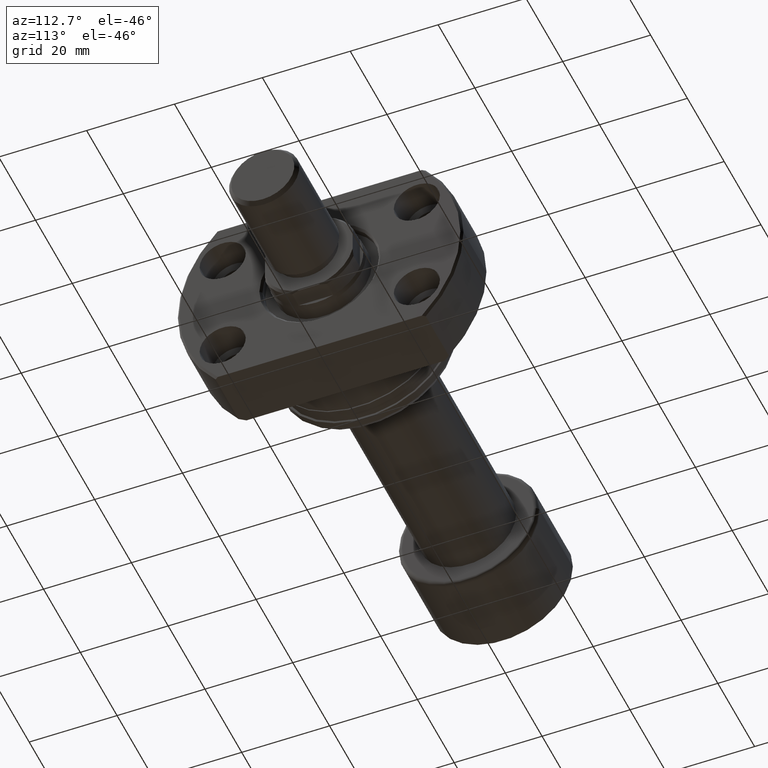
[diagram: clean part render]
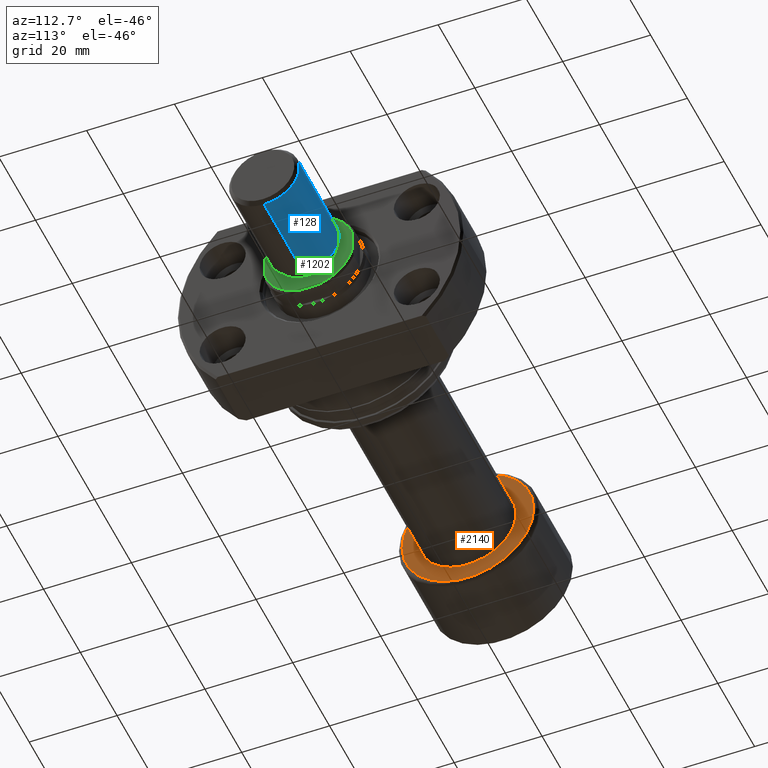
[diagram: same view with three faces highlighted in distinct colors, each labeled with its STEP entity id]
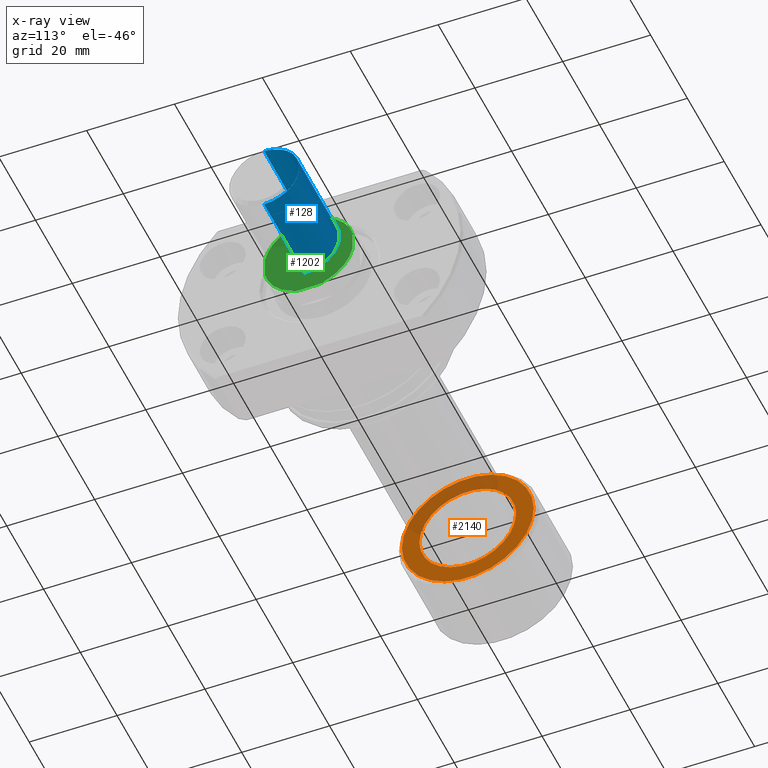
[diagram: x-ray of the same camera — body ghosted, the three highlighted faces saturated]
A machine part, auxiliary view with three faces highlighted in distinct colors.
The next image is the same camera in x-ray (body ghosted, the three faces saturated) — at least one of them is partly hidden behind the body in this view.
Their STEP definitions:

[orange] entity #2140 — the highlighted planar face has unit normal (-1, -0, 0).
#188 = PLANE ( 'NONE',  #3320 ) ;
#189 = CARTESIAN_POINT ( 'NONE',  ( 20.39999999999999503, -15.00000000000000000, 0.000000000000000000 ) ) ;
#316 = ORIENTED_EDGE ( 'NONE', *, *, #2756, .T. ) ;
#437 = VERTEX_POINT ( 'NONE', #3398 ) ;
#540 = ORIENTED_EDGE ( 'NONE', *, *, #903, .T. ) ;
#543 = DIRECTION ( 'NONE',  ( -1.000000000000000000, -1.069542322069065801E-17, -0.000000000000000000 ) ) ;
#614 = DIRECTION ( 'NONE',  ( -1.000000000000000000, -1.069542322069065801E-17, -0.000000000000000000 ) ) ;
#632 = CIRCLE ( 'NONE', #864, 11.00000000000000000 ) ;
#652 = CARTESIAN_POINT ( 'NONE',  ( 20.39999999999999503, 2.181866337020893623E-16, 0.000000000000000000 ) ) ;
#787 = VERTEX_POINT ( 'NONE', #1280 ) ;
#864 = AXIS2_PLACEMENT_3D ( 'NONE', #652, #1805, #3153 ) ;
#903 = EDGE_CURVE ( 'NONE', #2207, #787, #2716, .T. ) ;
#925 = EDGE_CURVE ( 'NONE', #437, #2548, #2537, .T. ) ;
#984 = FACE_BOUND ( 'NONE', #3444, .T. ) ;
#1021 = EDGE_CURVE ( 'NONE', #2548, #437, #1697, .T. ) ;
#1023 = DIRECTION ( 'NONE',  ( 1.069542322069065801E-17, -1.000000000000000000, 0.000000000000000000 ) ) ;
#1097 = DIRECTION ( 'NONE',  ( -1.000000000000000000, -1.069542322069065801E-17, -0.000000000000000000 ) ) ;
#1280 = CARTESIAN_POINT ( 'NONE',  ( 20.39999999999999503, 11.00000000000000000, 1.347111479062094321E-15 ) ) ;
#1284 = AXIS2_PLACEMENT_3D ( 'NONE', #3355, #1097, #3637 ) ;
#1348 = AXIS2_PLACEMENT_3D ( 'NONE', #3102, #543, #1676 ) ;
#1676 = DIRECTION ( 'NONE',  ( 0.000000000000000000, -1.000000000000000000, 0.000000000000000000 ) ) ;
#1697 = CIRCLE ( 'NONE', #1761, 15.00000000000000000 ) ;
#1761 = AXIS2_PLACEMENT_3D ( 'NONE', #3127, #614, #2043 ) ;
#1805 = DIRECTION ( 'NONE',  ( -1.000000000000000000, -1.069542322069065801E-17, -0.000000000000000000 ) ) ;
#1865 = CARTESIAN_POINT ( 'NONE',  ( 20.39999999999999503, -11.00000000000000000, 0.000000000000000000 ) ) ;
#2043 = DIRECTION ( 'NONE',  ( 0.000000000000000000, -1.000000000000000000, 0.000000000000000000 ) ) ;
#2075 = EDGE_LOOP ( 'NONE', ( #3397, #2461 ) ) ;
#2140 = ADVANCED_FACE ( 'NONE', ( #3243, #984 ), #188, .F. ) ;
#2207 = VERTEX_POINT ( 'NONE', #2726 ) ;
#2421 = DIRECTION ( 'NONE',  ( -1.000000000000000000, -1.069542322069065801E-17, 0.000000000000000000 ) ) ;
#2461 = ORIENTED_EDGE ( 'NONE', *, *, #925, .F. ) ;
#2537 = CIRCLE ( 'NONE', #1348, 15.00000000000000000 ) ;
#2548 = VERTEX_POINT ( 'NONE', #189 ) ;
#2716 = CIRCLE ( 'NONE', #1284, 11.00000000000000000 ) ;
#2726 = CARTESIAN_POINT ( 'NONE',  ( 20.39999999999999503, -11.00000000000000000, 0.000000000000000000 ) ) ;
#2756 = EDGE_CURVE ( 'NONE', #787, #2207, #632, .T. ) ;
#3102 = CARTESIAN_POINT ( 'NONE',  ( 20.39999999999999503, 2.181866337020893623E-16, 0.000000000000000000 ) ) ;
#3127 = CARTESIAN_POINT ( 'NONE',  ( 20.39999999999999503, 2.181866337020893623E-16, 0.000000000000000000 ) ) ;
#3153 = DIRECTION ( 'NONE',  ( 0.000000000000000000, -1.000000000000000000, 0.000000000000000000 ) ) ;
#3243 = FACE_OUTER_BOUND ( 'NONE', #2075, .T. ) ;
#3320 = AXIS2_PLACEMENT_3D ( 'NONE', #1865, #2421, #1023 ) ;
#3355 = CARTESIAN_POINT ( 'NONE',  ( 20.39999999999999503, 2.181866337020893623E-16, 0.000000000000000000 ) ) ;
#3397 = ORIENTED_EDGE ( 'NONE', *, *, #1021, .F. ) ;
#3398 = CARTESIAN_POINT ( 'NONE',  ( 20.39999999999999503, 15.00000000000000000, 1.898202538678397163E-15 ) ) ;
#3444 = EDGE_LOOP ( 'NONE', ( #540, #316 ) ) ;
#3637 = DIRECTION ( 'NONE',  ( 0.000000000000000000, -1.000000000000000000, 0.000000000000000000 ) ) ;

[blue] entity #128 — the highlighted cylindrical surface (partial cylindrical patch) has radius 8 mm, axis along (1, 0, -0).
#128 = ADVANCED_FACE ( 'NONE', ( #2068 ), #3507, .T. ) ;
#137 = VERTEX_POINT ( 'NONE', #3213 ) ;
#625 = CARTESIAN_POINT ( 'NONE',  ( 8.000000000000000000, 9.797174393178823685E-16, 22.50000000000000000 ) ) ;
#717 = ORIENTED_EDGE ( 'NONE', *, *, #2825, .F. ) ;
#777 = CARTESIAN_POINT ( 'NONE',  ( 0.000000000000000000, 0.000000000000000000, 22.50000000000000000 ) ) ;
#783 = CARTESIAN_POINT ( 'NONE',  ( 0.000000000000000000, 0.000000000000000000, 0.8000000000000160316 ) ) ;
#855 = DIRECTION ( 'NONE',  ( -0.000000000000000000, -0.000000000000000000, -1.000000000000000000 ) ) ;
#862 = AXIS2_PLACEMENT_3D ( 'NONE', #783, #1062, #1902 ) ;
#885 = EDGE_CURVE ( 'NONE', #2049, #137, #2900, .T. ) ;
#952 = DIRECTION ( 'NONE',  ( -1.000000000000000000, 0.000000000000000000, 0.000000000000000000 ) ) ;
#1062 = DIRECTION ( 'NONE',  ( -0.000000000000000000, -0.000000000000000000, 1.000000000000000000 ) ) ;
#1226 = LINE ( 'NONE', #3172, #1287 ) ;
#1287 = VECTOR ( 'NONE', #2064, 1000.000000000000000 ) ;
#1373 = DIRECTION ( 'NONE',  ( 1.000000000000000000, 0.000000000000000000, 0.000000000000000000 ) ) ;
#1450 = VERTEX_POINT ( 'NONE', #625 ) ;
#1508 = CARTESIAN_POINT ( 'NONE',  ( 0.000000000000000000, 0.000000000000000000, 22.50000000000000000 ) ) ;
#1654 = CARTESIAN_POINT ( 'NONE',  ( 8.000000000000000000, 9.797174393178823685E-16, 22.50000000000000000 ) ) ;
#1680 = EDGE_LOOP ( 'NONE', ( #2814, #2034, #3489, #717 ) ) ;
#1773 = DIRECTION ( 'NONE',  ( -0.000000000000000000, -0.000000000000000000, -1.000000000000000000 ) ) ;
#1863 = EDGE_CURVE ( 'NONE', #1450, #2049, #1992, .T. ) ;
#1902 = DIRECTION ( 'NONE',  ( 1.000000000000000000, 0.000000000000000000, 0.000000000000000000 ) ) ;
#1948 = AXIS2_PLACEMENT_3D ( 'NONE', #777, #2465, #1373 ) ;
#1992 = LINE ( 'NONE', #1654, #2484 ) ;
#2034 = ORIENTED_EDGE ( 'NONE', *, *, #1863, .T. ) ;
#2049 = VERTEX_POINT ( 'NONE', #3538 ) ;
#2064 = DIRECTION ( 'NONE',  ( -0.000000000000000000, -0.000000000000000000, -1.000000000000000000 ) ) ;
#2068 = FACE_OUTER_BOUND ( 'NONE', #1680, .T. ) ;
#2289 = AXIS2_PLACEMENT_3D ( 'NONE', #1508, #1773, #952 ) ;
#2465 = DIRECTION ( 'NONE',  ( 0.000000000000000000, 0.000000000000000000, 1.000000000000000000 ) ) ;
#2484 = VECTOR ( 'NONE', #855, 1000.000000000000000 ) ;
#2709 = VERTEX_POINT ( 'NONE', #3505 ) ;
#2814 = ORIENTED_EDGE ( 'NONE', *, *, #2967, .F. ) ;
#2825 = EDGE_CURVE ( 'NONE', #2709, #137, #1226, .T. ) ;
#2900 = CIRCLE ( 'NONE', #862, 8.000000000000000000 ) ;
#2908 = CIRCLE ( 'NONE', #1948, 8.000000000000000000 ) ;
#2967 = EDGE_CURVE ( 'NONE', #1450, #2709, #2908, .T. ) ;
#3172 = CARTESIAN_POINT ( 'NONE',  ( -8.000000000000000000, 0.000000000000000000, 22.50000000000000000 ) ) ;
#3213 = CARTESIAN_POINT ( 'NONE',  ( -8.000000000000000000, 0.000000000000000000, 0.8000000000000160316 ) ) ;
#3489 = ORIENTED_EDGE ( 'NONE', *, *, #885, .T. ) ;
#3505 = CARTESIAN_POINT ( 'NONE',  ( -8.000000000000000000, 0.000000000000000000, 22.50000000000000000 ) ) ;
#3507 = CYLINDRICAL_SURFACE ( 'NONE', #2289, 8.000000000000000000 ) ;
#3538 = CARTESIAN_POINT ( 'NONE',  ( 8.000000000000000000, 9.797174393178823685E-16, 0.8000000000000160316 ) ) ;

[green] entity #1202 — the highlighted planar face has unit normal (-1, -0, 0).
#106 = CIRCLE ( 'NONE', #1834, 3.500000000000388578 ) ;
#129 = DIRECTION ( 'NONE',  ( 0.000000000000000000, 4.397345338720496705E-16, -1.000000000000000000 ) ) ;
#160 = DIRECTION ( 'NONE',  ( 0.000000000000000000, -4.397345338720496705E-16, 1.000000000000000000 ) ) ;
#169 = DIRECTION ( 'NONE',  ( 0.000000000000000000, -1.000000000000000000, 0.000000000000000000 ) ) ;
#217 = VERTEX_POINT ( 'NONE', #2750 ) ;
#231 = CARTESIAN_POINT ( 'NONE',  ( 106.9999999999999858, 1.144410284613900254E-15, 0.000000000000000000 ) ) ;
#232 = CARTESIAN_POINT ( 'NONE',  ( 106.9999999999999858, -3.500000000002283951, 4.286263797016361274E-16 ) ) ;
#298 = DIRECTION ( 'NONE',  ( 0.000000000000000000, -1.000000000000000000, 0.000000000000000000 ) ) ;
#312 = CARTESIAN_POINT ( 'NONE',  ( 107.0000000000000284, 2.249999999999920064, -9.999999999999996447 ) ) ;
#395 = VECTOR ( 'NONE', #1717, 1000.000000000000000 ) ;
#446 = EDGE_CURVE ( 'NONE', #500, #2407, #1991, .T. ) ;
#500 = VERTEX_POINT ( 'NONE', #312 ) ;
#531 = CIRCLE ( 'NONE', #1539, 3.500000000000388578 ) ;
#667 = FACE_OUTER_BOUND ( 'NONE', #3533, .T. ) ;
#675 = EDGE_CURVE ( 'NONE', #500, #2913, #2481, .T. ) ;
#679 = ORIENTED_EDGE ( 'NONE', *, *, #1457, .F. ) ;
#721 = DIRECTION ( 'NONE',  ( -1.000000000000000000, -1.069542322069065801E-17, 0.000000000000000000 ) ) ;
#722 = EDGE_CURVE ( 'NONE', #1479, #2913, #3523, .T. ) ;
#840 = ORIENTED_EDGE ( 'NONE', *, *, #3625, .T. ) ;
#845 = CARTESIAN_POINT ( 'NONE',  ( 106.9999999999999858, 9.999999999998223643, 2.250000000007773338 ) ) ;
#853 = EDGE_LOOP ( 'NONE', ( #840, #2280 ) ) ;
#908 = VERTEX_POINT ( 'NONE', #3373 ) ;
#970 = DIRECTION ( 'NONE',  ( 0.000000000000000000, -1.000000000000000000, 0.000000000000000000 ) ) ;
#1079 = ORIENTED_EDGE ( 'NONE', *, *, #2708, .T. ) ;
#1166 = VECTOR ( 'NONE', #2563, 1000.000000000000000 ) ;
#1202 = ADVANCED_FACE ( 'NONE', ( #2102, #667 ), #1804, .F. ) ;
#1232 = CIRCLE ( 'NONE', #2966, 10.24999999999996625 ) ;
#1234 = CARTESIAN_POINT ( 'NONE',  ( 106.9999999999999858, 1.144410284613900254E-15, 0.000000000000000000 ) ) ;
#1247 = VERTEX_POINT ( 'NONE', #2719 ) ;
#1276 = ORIENTED_EDGE ( 'NONE', *, *, #446, .F. ) ;
#1286 = AXIS2_PLACEMENT_3D ( 'NONE', #1234, #1879, #169 ) ;
#1295 = AXIS2_PLACEMENT_3D ( 'NONE', #231, #2505, #3643 ) ;
#1332 = DIRECTION ( 'NONE',  ( 1.000000000000000000, 1.069542322069065801E-17, 0.000000000000000000 ) ) ;
#1355 = DIRECTION ( 'NONE',  ( 0.000000000000000000, -1.000000000000000000, 0.000000000000000000 ) ) ;
#1457 = EDGE_CURVE ( 'NONE', #908, #217, #3402, .T. ) ;
#1479 = VERTEX_POINT ( 'NONE', #845 ) ;
#1527 = AXIS2_PLACEMENT_3D ( 'NONE', #2627, #2607, #1730 ) ;
#1539 = AXIS2_PLACEMENT_3D ( 'NONE', #2540, #3399, #298 ) ;
#1560 = VERTEX_POINT ( 'NONE', #2549 ) ;
#1591 = VECTOR ( 'NONE', #129, 1000.000000000000000 ) ;
#1635 = ORIENTED_EDGE ( 'NONE', *, *, #675, .T. ) ;
#1671 = CARTESIAN_POINT ( 'NONE',  ( 106.9999999999999858, 1.144410284613900254E-15, 0.000000000000000000 ) ) ;
#1717 = DIRECTION ( 'NONE',  ( -1.758938135488198564E-14, -1.000000000000000000, -4.397345338720496705E-16 ) ) ;
#1730 = DIRECTION ( 'NONE',  ( 0.000000000000000000, -1.000000000000000000, 1.776356839400250465E-15 ) ) ;
#1762 = CARTESIAN_POINT ( 'NONE',  ( 106.9999999999999147, -3.944933459516652530, 9.999999999999998224 ) ) ;
#1787 = LINE ( 'NONE', #2933, #2237 ) ;
#1804 = PLANE ( 'NONE',  #3376 ) ;
#1834 = AXIS2_PLACEMENT_3D ( 'NONE', #2650, #2342, #970 ) ;
#1860 = DIRECTION ( 'NONE',  ( 1.069542322069065801E-17, -1.000000000000000000, 0.000000000000000000 ) ) ;
#1879 = DIRECTION ( 'NONE',  ( 1.000000000000000000, 1.069542322069065801E-17, 0.000000000000000000 ) ) ;
#1991 = LINE ( 'NONE', #3412, #395 ) ;
#2102 = FACE_BOUND ( 'NONE', #853, .T. ) ;
#2130 = ORIENTED_EDGE ( 'NONE', *, *, #3389, .T. ) ;
#2225 = ORIENTED_EDGE ( 'NONE', *, *, #3008, .T. ) ;
#2237 = VECTOR ( 'NONE', #160, 1000.000000000000000 ) ;
#2280 = ORIENTED_EDGE ( 'NONE', *, *, #3659, .T. ) ;
#2342 = DIRECTION ( 'NONE',  ( -1.000000000000000000, -1.069542322069065801E-17, -0.000000000000000000 ) ) ;
#2407 = VERTEX_POINT ( 'NONE', #2459 ) ;
#2459 = CARTESIAN_POINT ( 'NONE',  ( 106.9999999999999432, -2.249999999999845013, -10.00000000000000000 ) ) ;
#2481 = CIRCLE ( 'NONE', #1286, 10.24999999999998046 ) ;
#2505 = DIRECTION ( 'NONE',  ( 1.000000000000000000, 1.069542322069065801E-17, 0.000000000000000000 ) ) ;
#2540 = CARTESIAN_POINT ( 'NONE',  ( 106.9999999999999858, -1.773273335456686459E-12, 0.000000000000000000 ) ) ;
#2549 = CARTESIAN_POINT ( 'NONE',  ( 106.9999999999999858, 3.499999999998609557, 0.000000000000000000 ) ) ;
#2563 = DIRECTION ( 'NONE',  ( 1.758938135488198564E-14, 1.000000000000000000, 2.198672669360248352E-16 ) ) ;
#2568 = CARTESIAN_POINT ( 'NONE',  ( 106.9999999999998153, -10.00000000000177280, 2.249999999992069899 ) ) ;
#2607 = DIRECTION ( 'NONE',  ( 1.000000000000000000, 1.069542322069065801E-17, 0.000000000000000000 ) ) ;
#2627 = CARTESIAN_POINT ( 'NONE',  ( 106.9999999999999858, 1.144410284613900254E-15, 0.000000000000000000 ) ) ;
#2650 = CARTESIAN_POINT ( 'NONE',  ( 106.9999999999999858, -1.773273335456686459E-12, 0.000000000000000000 ) ) ;
#2668 = VERTEX_POINT ( 'NONE', #2568 ) ;
#2708 = EDGE_CURVE ( 'NONE', #908, #2668, #3427, .T. ) ;
#2719 = CARTESIAN_POINT ( 'NONE',  ( 106.9999999999999858, -10.00000000000176925, -2.249999999991968203 ) ) ;
#2750 = CARTESIAN_POINT ( 'NONE',  ( 107.0000000000000284, 2.249999999999883205, 10.00000000000000000 ) ) ;
#2850 = EDGE_CURVE ( 'NONE', #1247, #2668, #1787, .T. ) ;
#2913 = VERTEX_POINT ( 'NONE', #3334 ) ;
#2929 = VERTEX_POINT ( 'NONE', #232 ) ;
#2933 = CARTESIAN_POINT ( 'NONE',  ( 106.9999999999998153, -10.00000000000176925, -3.944933459514881502 ) ) ;
#2966 = AXIS2_PLACEMENT_3D ( 'NONE', #1671, #1332, #1355 ) ;
#2975 = CARTESIAN_POINT ( 'NONE',  ( 107.0000000000001563, 9.999999999998223643, 3.944933459514879726 ) ) ;
#3008 = EDGE_CURVE ( 'NONE', #1247, #2407, #1232, .T. ) ;
#3202 = CIRCLE ( 'NONE', #1295, 10.24999999999997335 ) ;
#3226 = CARTESIAN_POINT ( 'NONE',  ( 106.9999999999999858, -6.148574185495778962E-34, 0.000000000000000000 ) ) ;
#3334 = CARTESIAN_POINT ( 'NONE',  ( 107.0000000000001563, 9.999999999998227196, -2.250000000007795098 ) ) ;
#3373 = CARTESIAN_POINT ( 'NONE',  ( 106.9999999999999432, -2.249999999999954259, 10.00000000000000000 ) ) ;
#3376 = AXIS2_PLACEMENT_3D ( 'NONE', #3226, #721, #1860 ) ;
#3389 = EDGE_CURVE ( 'NONE', #1479, #217, #3202, .T. ) ;
#3399 = DIRECTION ( 'NONE',  ( -1.000000000000000000, -1.069542322069065801E-17, -0.000000000000000000 ) ) ;
#3402 = LINE ( 'NONE', #1762, #1166 ) ;
#3412 = CARTESIAN_POINT ( 'NONE',  ( 107.0000000000000568, 3.944933459513106477, -9.999999999999996447 ) ) ;
#3427 = CIRCLE ( 'NONE', #1527, 10.24999999999998934 ) ;
#3523 = LINE ( 'NONE', #2975, #1591 ) ;
#3533 = EDGE_LOOP ( 'NONE', ( #1276, #1635, #3626, #2130, #679, #1079, #3640, #2225 ) ) ;
#3625 = EDGE_CURVE ( 'NONE', #1560, #2929, #531, .T. ) ;
#3626 = ORIENTED_EDGE ( 'NONE', *, *, #722, .F. ) ;
#3640 = ORIENTED_EDGE ( 'NONE', *, *, #2850, .F. ) ;
#3643 = DIRECTION ( 'NONE',  ( 0.000000000000000000, -1.000000000000000000, 0.000000000000000000 ) ) ;
#3659 = EDGE_CURVE ( 'NONE', #2929, #1560, #106, .T. ) ;